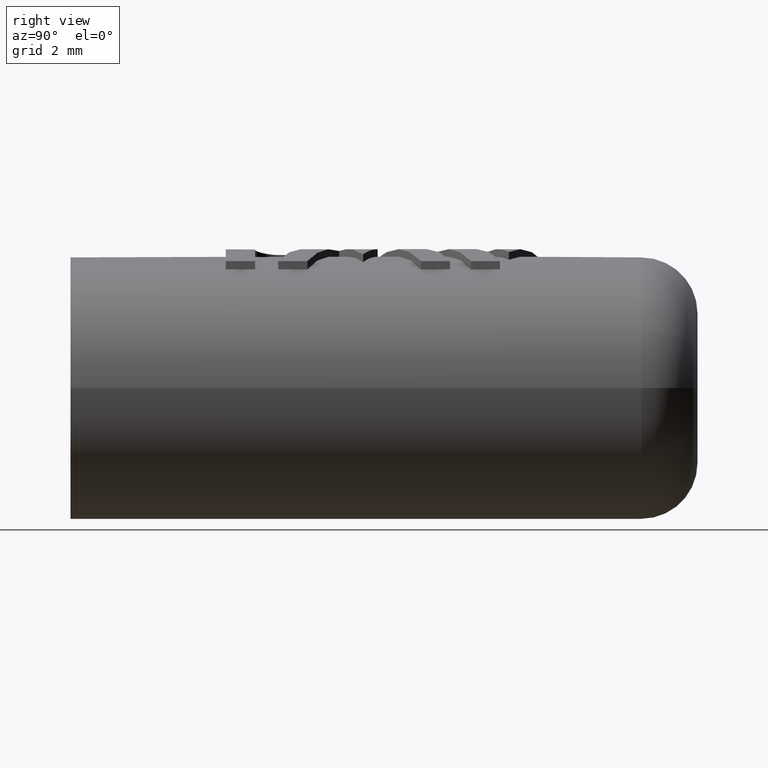
[diagram: clean part render]
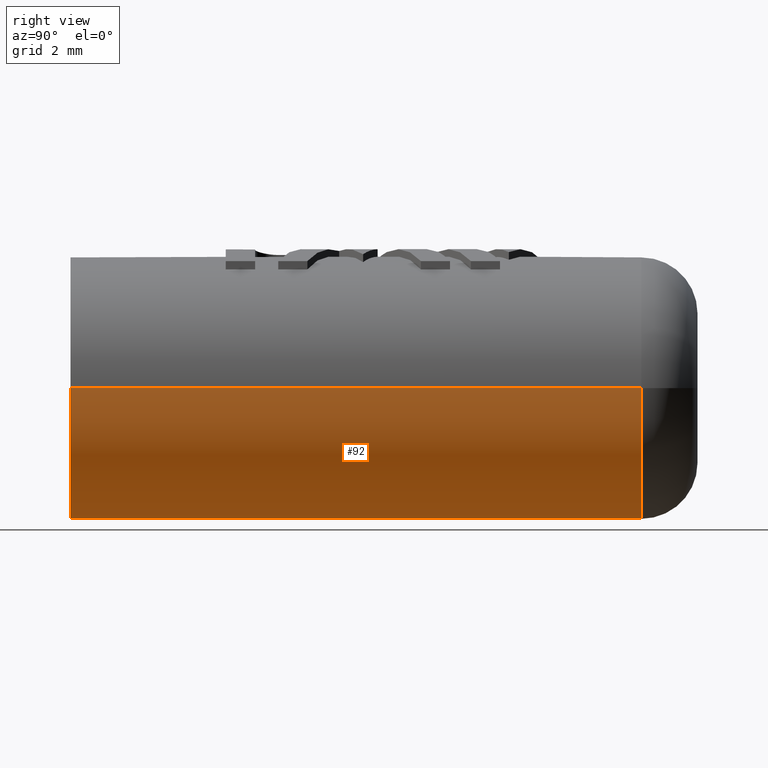
[diagram: same view with one face highlighted and labeled with its STEP entity id]
A machine part, right view. The second image highlights one B-rep face of the part: STEP entity #92.
In plain terms, the highlighted cylindrical surface (partial cylindrical patch) has radius 3.5 mm, axis along (-0, 1, 0).
Its self-contained STEP definition (entity closure, byte-faithful):
#92=ADVANCED_FACE('',(#185),#186,.T.);
#185=FACE_OUTER_BOUND('',#1920,.T.);
#186=CYLINDRICAL_SURFACE('',#1921,3.5);
#1920=EDGE_LOOP('',(#2127,#2128,#2129,#2130));
#1921=AXIS2_PLACEMENT_3D('',#2131,#2132,#2133);
#2127=ORIENTED_EDGE('',*,*,#2772,.F.);
#2128=ORIENTED_EDGE('',*,*,#2773,.F.);
#2129=ORIENTED_EDGE('',*,*,#2774,.F.);
#2130=ORIENTED_EDGE('',*,*,#2775,.T.);
#2131=CARTESIAN_POINT('',(0.0,0.0,0.0));
#2132=DIRECTION('',(-0.0,1.0,0.0));
#2133=DIRECTION('',(1.0,0.0,-6.12323399573677E-17));
#2772=EDGE_CURVE('',#3002,#2995,#3003,.T.);
#2773=EDGE_CURVE('',#3004,#3002,#3005,.T.);
#2774=EDGE_CURVE('',#2999,#3004,#3006,.T.);
#2775=EDGE_CURVE('',#2999,#2995,#3007,.T.);
#2995=VERTEX_POINT('',#4152);
#2999=VERTEX_POINT('',#4156);
#3002=VERTEX_POINT('',#4159);
#3003=LINE('',#4160,#4161);
#3004=VERTEX_POINT('',#4162);
#3005=CIRCLE('',#4163,3.5);
#3006=LINE('',#4164,#4165);
#3007=CIRCLE('',#4166,3.5);
#4152=CARTESIAN_POINT('',(3.5,15.2,-2.14313189850787E-16));
#4156=CARTESIAN_POINT('',(-3.5,15.2,-2.14313189850787E-16));
#4159=CARTESIAN_POINT('',(3.5,5.20417042793042E-15,-2.14313189850787E-16));
#4160=CARTESIAN_POINT('',(3.5,0.0,2.14313189850787E-16));
#4161=VECTOR('',#4611,1.0);
#4162=CARTESIAN_POINT('',(-3.5,5.32907051820075E-15,-2.14313189850787E-16));
#4163=AXIS2_PLACEMENT_3D('',#4612,#4613,#4614);
#4164=CARTESIAN_POINT('',(-3.5,0.0,-2.14313189850787E-16));
#4165=VECTOR('',#4615,1.0);
#4166=AXIS2_PLACEMENT_3D('',#4616,#4617,#4618);
#4611=DIRECTION('',(-0.0,1.0,-0.0));
#4612=CARTESIAN_POINT('',(0.0,5.20417042793042E-15,0.0));
#4613=DIRECTION('',(0.0,-1.0,0.0));
#4614=DIRECTION('',(1.0,0.0,-6.12323399573677E-17));
#4615=DIRECTION('',(-0.0,-1.0,-0.0));
#4616=CARTESIAN_POINT('',(0.0,15.2,0.0));
#4617=DIRECTION('',(0.0,-1.0,0.0));
#4618=DIRECTION('',(1.0,0.0,-6.12323399573677E-17));